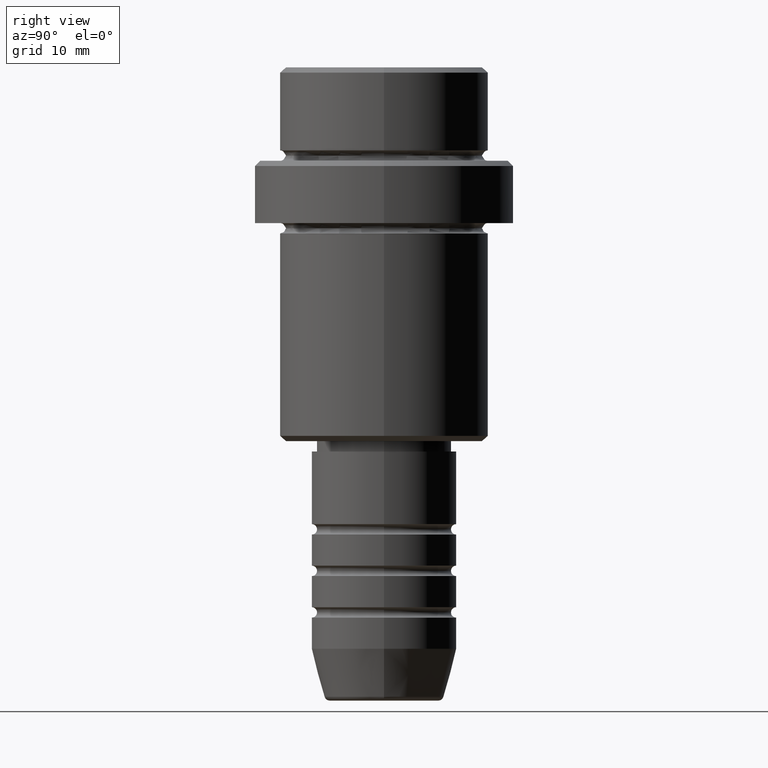
[diagram: clean part render]
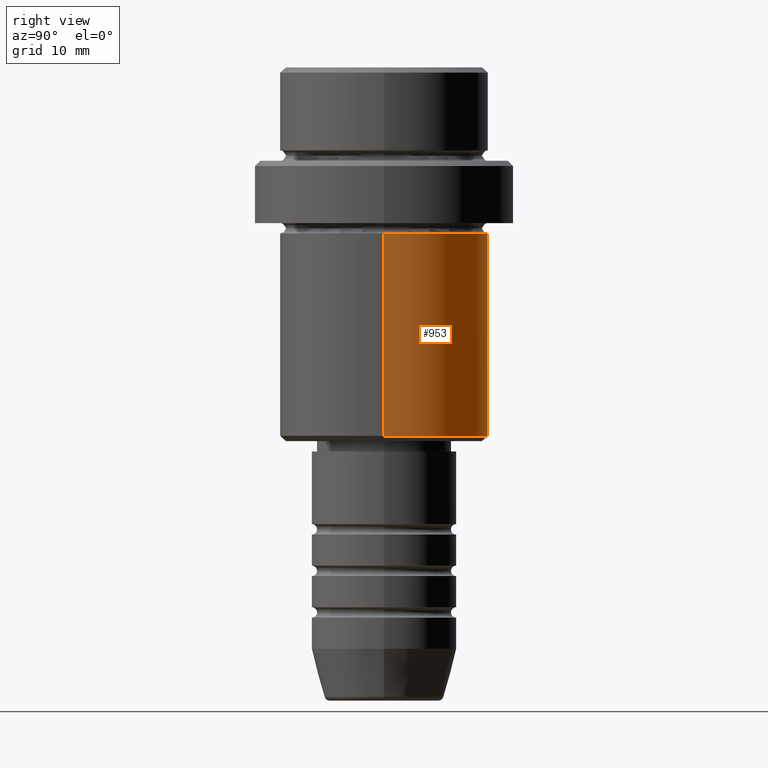
[diagram: same view with one face highlighted and labeled with its STEP entity id]
A machine part, right view. The second image highlights one B-rep face of the part: STEP entity #953.
In plain terms, the highlighted cylindrical surface (partial cylindrical patch) has radius 10 mm, axis along (-0, -0, 1).
Its self-contained STEP definition (entity closure, byte-faithful):
#69 = DIRECTION ( 'NONE',  ( -0.000000000000000000, -0.000000000000000000, 1.000000000000000000 ) ) ;
#89 = VERTEX_POINT ( 'NONE', #912 ) ;
#94 = FACE_OUTER_BOUND ( 'NONE', #1135, .T. ) ;
#100 = VECTOR ( 'NONE', #279, 1000.000000000000000 ) ;
#117 = CIRCLE ( 'NONE', #191, 10.00000000000000000 ) ;
#156 = CARTESIAN_POINT ( 'NONE',  ( 0.000000000000000000, 0.000000000000000000, -35.50000000000001421 ) ) ;
#191 = AXIS2_PLACEMENT_3D ( 'NONE', #156, #1047, #270 ) ;
#208 = CARTESIAN_POINT ( 'NONE',  ( -10.00000000000000000, 1.224646799147353256E-15, -35.50000000000001421 ) ) ;
#215 = ORIENTED_EDGE ( 'NONE', *, *, #1278, .F. ) ;
#253 = ORIENTED_EDGE ( 'NONE', *, *, #423, .F. ) ;
#270 = DIRECTION ( 'NONE',  ( -1.000000000000000000, 0.000000000000000000, 0.000000000000000000 ) ) ;
#279 = DIRECTION ( 'NONE',  ( -0.000000000000000000, -0.000000000000000000, 1.000000000000000000 ) ) ;
#308 = DIRECTION ( 'NONE',  ( 1.000000000000000000, 0.000000000000000000, 0.000000000000000000 ) ) ;
#312 = CYLINDRICAL_SURFACE ( 'NONE', #657, 10.00000000000000000 ) ;
#378 = CARTESIAN_POINT ( 'NONE',  ( -10.00000000000000000, 1.224646799147353256E-15, -16.00000000000000000 ) ) ;
#388 = LINE ( 'NONE', #1082, #1176 ) ;
#395 = EDGE_CURVE ( 'NONE', #877, #504, #388, .T. ) ;
#423 = EDGE_CURVE ( 'NONE', #89, #504, #897, .T. ) ;
#477 = CARTESIAN_POINT ( 'NONE',  ( 10.00000000000000000, 0.000000000000000000, -35.50000000000001421 ) ) ;
#504 = VERTEX_POINT ( 'NONE', #378 ) ;
#509 = CARTESIAN_POINT ( 'NONE',  ( 0.000000000000000000, 0.000000000000000000, 0.000000000000000000 ) ) ;
#535 = DIRECTION ( 'NONE',  ( -0.000000000000000000, -0.000000000000000000, 1.000000000000000000 ) ) ;
#597 = CARTESIAN_POINT ( 'NONE',  ( 0.000000000000000000, 0.000000000000000000, -16.00000000000000000 ) ) ;
#657 = AXIS2_PLACEMENT_3D ( 'NONE', #509, #535, #308 ) ;
#779 = EDGE_CURVE ( 'NONE', #834, #877, #117, .T. ) ;
#824 = CARTESIAN_POINT ( 'NONE',  ( 10.00000000000000000, 0.000000000000000000, 0.000000000000000000 ) ) ;
#834 = VERTEX_POINT ( 'NONE', #477 ) ;
#855 = DIRECTION ( 'NONE',  ( -0.000000000000000000, -0.000000000000000000, 1.000000000000000000 ) ) ;
#877 = VERTEX_POINT ( 'NONE', #208 ) ;
#897 = CIRCLE ( 'NONE', #1243, 10.00000000000000000 ) ;
#912 = CARTESIAN_POINT ( 'NONE',  ( 10.00000000000000000, 0.000000000000000000, -16.00000000000000000 ) ) ;
#953 = ADVANCED_FACE ( 'NONE', ( #94 ), #312, .T. ) ;
#1047 = DIRECTION ( 'NONE',  ( -0.000000000000000000, -0.000000000000000000, 1.000000000000000000 ) ) ;
#1082 = CARTESIAN_POINT ( 'NONE',  ( -10.00000000000000000, 1.224646799147353256E-15, 0.000000000000000000 ) ) ;
#1135 = EDGE_LOOP ( 'NONE', ( #1417, #1218, #253, #215 ) ) ;
#1148 = DIRECTION ( 'NONE',  ( 1.000000000000000000, 0.000000000000000000, 0.000000000000000000 ) ) ;
#1176 = VECTOR ( 'NONE', #855, 1000.000000000000000 ) ;
#1218 = ORIENTED_EDGE ( 'NONE', *, *, #395, .T. ) ;
#1243 = AXIS2_PLACEMENT_3D ( 'NONE', #597, #69, #1148 ) ;
#1278 = EDGE_CURVE ( 'NONE', #834, #89, #1383, .T. ) ;
#1383 = LINE ( 'NONE', #824, #100 ) ;
#1417 = ORIENTED_EDGE ( 'NONE', *, *, #779, .T. ) ;